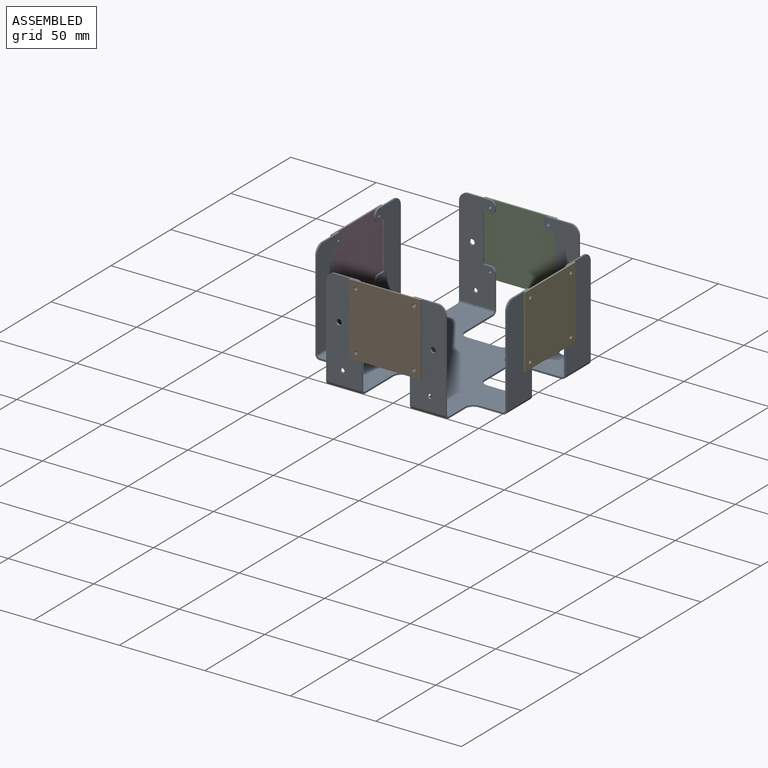
[diagram: assembled view]
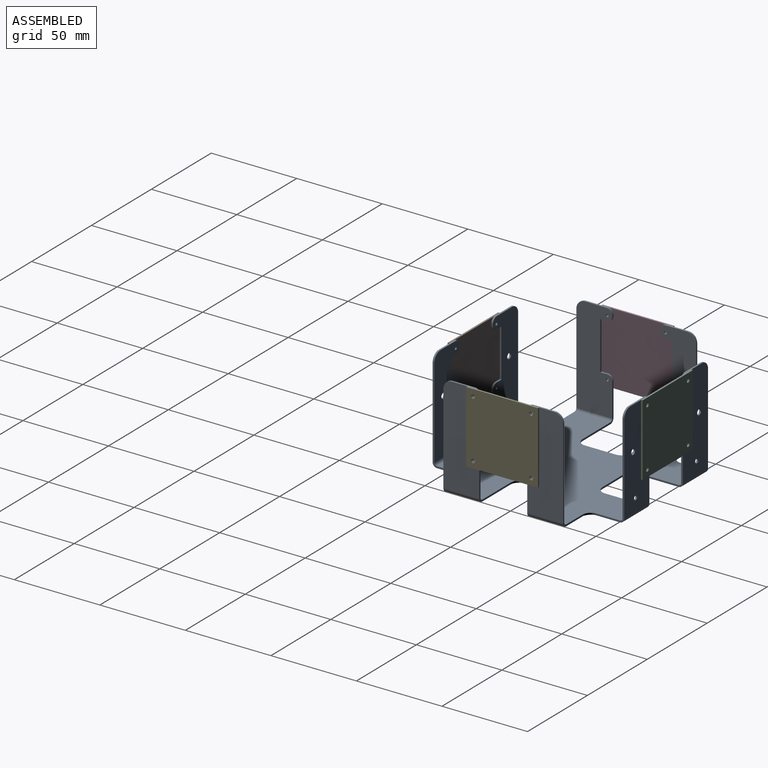
[diagram: assembled view, second angle]
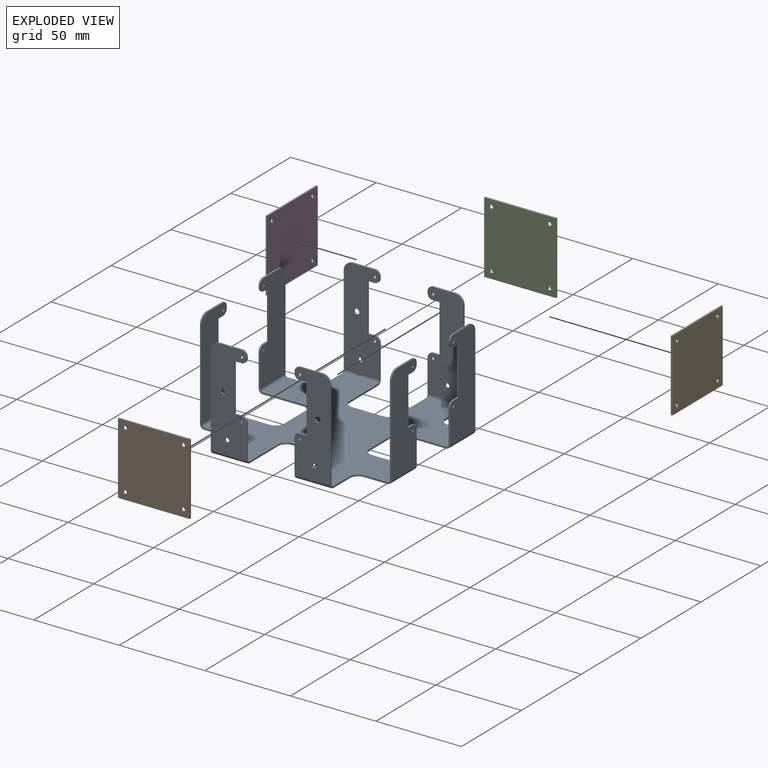
[diagram: exploded view]
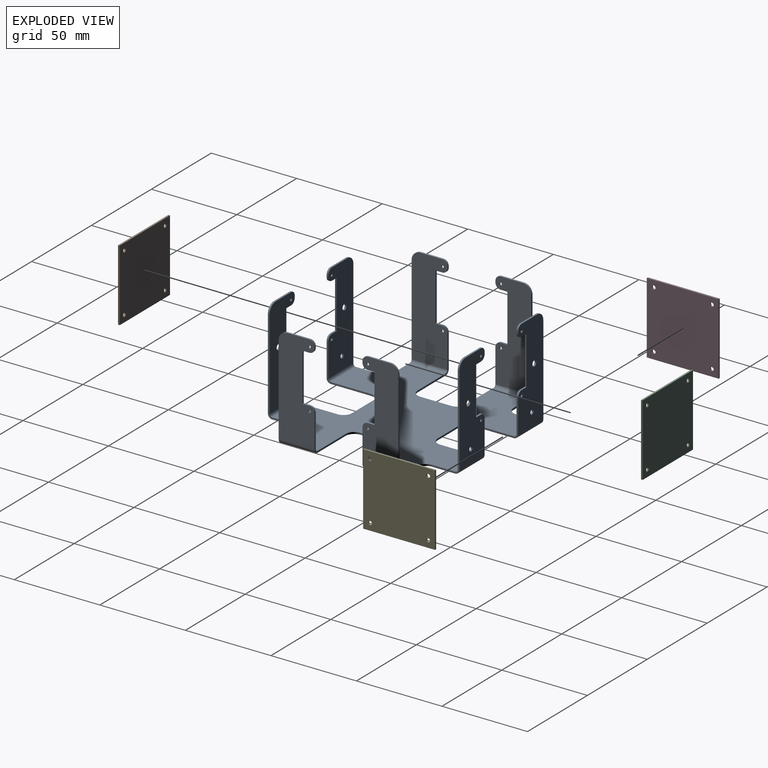
[diagram: exploded view, second angle]
ASSEMBLY  parts=5 mates=4
PART A: 194 faces, bbox 112x112x60 mm
  f0: plane 23.5x1mm, normal (0,1,0), area 23.5mm2, adj f20,f21,f24,f111
  f1: plane 18x1mm, normal (-1,0,0), area 18mm2, adj f20,f21,f24,f28
  f2: plane 23.5x1mm, normal (0,-1,0), area 23.5mm2, adj f20,f21,f28,f91
  f3: plane 13.5x1mm, normal (0,1,0), area 13.5mm2, adj f20,f21,f31,f92
  f4: plane 13.52x1mm, normal (-1,0,0), area 13.5mm2, adj f20,f21,f31,f72
  f5: plane 23.5x1mm, normal (1,0,0), area 23.5mm2, adj f20,f21,f22,f73
  f6: plane 18x1mm, normal (0,1,0), area 18mm2, adj f20,f21,f22,f27
  f7: plane 23.5x1mm, normal (-1,0,0), area 23.5mm2, adj f20,f21,f27,f51
  f8: plane 13.52x1mm, normal (1,0,0), area 13.5mm2, adj f20,f21,f30,f52
  f9: plane 13.5x1mm, normal (0,1,0), area 13.5mm2, adj f20,f21,f30,f171
  f10: plane 23.5x1mm, normal (0,-1,0), area 23.5mm2, adj f20,f21,f26,f172
  f11: plane 18x1mm, normal (1,0,0), area 18mm2, adj f20,f21,f23,f26
  f12: plane 23.5x1mm, normal (0,1,0), area 23.5mm2, adj f20,f21,f23,f190
  f13: plane 13.5x1mm, normal (0,-1,0), area 13.5mm2, adj f20,f21,f33,f191
  f14: plane 13.52x1mm, normal (1,0,0), area 13.5mm2, adj f20,f21,f33,f152
  f15: plane 23.5x1mm, normal (-1,0,0), area 23.5mm2, adj f20,f21,f25,f153
  f16: plane 18x1mm, normal (0,-1,0), area 18mm2, adj f20,f21,f25,f29
  f17: plane 23.5x1mm, normal (1,0,0), area 23.5mm2, adj f20,f21,f29,f131
  f18: plane 13.52x1mm, normal (-1,0,0), area 13.5mm2, adj f20,f21,f32,f132
  f19: plane 13.5x1mm, normal (0,-1,0), area 13.5mm2, adj f20,f21,f32,f110
  f20: plane 107x107mm, normal (0,0,-1), area 6950.9mm2, adj f0,f1,f2,f3,f4,f5,f6,f7
  f21: plane 107x107mm, normal (0,0,1), area 6950.9mm2, adj f0,f1,f2,f3,f4,f5,f6,f7
  f22: cylinder r=5mm len=5mm, axis (0,0,-1), area 7.9mm2, adj f5,f6,f20,f21
  f23: cylinder r=5mm len=5mm, axis (0,0,1), area 7.9mm2, adj f11,f12,f20,f21
  f24: cylinder r=5mm len=5mm, axis (0,0,-1), area 7.9mm2, adj f0,f1,f20,f21
  f25: cylinder r=5mm len=5mm, axis (0,0,-1), area 7.9mm2, adj f15,f16,f20,f21
  f26: cylinder r=5mm len=5mm, axis (0,0,-1), area 7.9mm2, adj f10,f11,f20,f21
  f27: cylinder r=5mm len=5mm, axis (0,0,1), area 7.9mm2, adj f6,f7,f20,f21
  f28: cylinder r=5mm len=5mm, axis (0,0,1), area 7.9mm2, adj f1,f2,f20,f21
  f29: cylinder r=5mm len=5mm, axis (0,0,1), area 7.9mm2, adj f16,f17,f20,f21
  f30: cylinder r=5mm len=5mm, axis (0,0,-1), area 7.9mm2, adj f8,f9,f20,f21
  f31: cylinder r=5mm len=5mm, axis (0,0,-1), area 7.9mm2, adj f3,f4,f20,f21
  f32: cylinder r=5mm len=5mm, axis (0,0,-1), area 7.9mm2, adj f18,f19,f20,f21
  f33: cylinder r=5mm len=5mm, axis (0,0,-1), area 7.9mm2, adj f13,f14,f20,f21
  f34: plane 19.5x1mm, normal (-1,0,0), area 19.5mm2, adj f35,f47,f48,f51
  f35: cylinder r=3mm len=3mm, axis (0,1,0), area 4.7mm2, adj f34,f36,f47,f48
  f36: plane 4x1mm, normal (0,0,1), area 4mm2, adj f35,f37,f47,f48
  f37: plane 28x1mm, normal (-1,0,0), area 28mm2, adj f36,f38,f47,f48
  f38: plane 4x1mm, normal (0,0,-1), area 4mm2, adj f37,f39,f47,f48
  f39: cylinder r=3mm len=3mm, axis (0,1,0), area 4.7mm2, adj f38,f40,f47,f48
  f40: plane 1x1mm, normal (-1,0,0), area 1mm2, adj f39,f47,f48,f50
  f41: plane 13x1mm, normal (0,0,1), area 13mm2, adj f47,f48,f49,f50
  f42: cylinder r=1.6mm len=3.2mm, axis (0,1,0), area 10.1mm2, adj f47,f48
  f43: cylinder r=1.25mm len=2.5mm, axis (0,1,0), area 7.9mm2, adj f47,f48
  f44: cylinder r=0.8mm len=1.6mm, axis (0,1,0), area 5mm2, adj f47,f48
  f45: cylinder r=0.8mm len=1.6mm, axis (0,1,0), area 5mm2, adj f47,f48
  f46: plane 52.5x1mm, normal (1,0,0), area 52.5mm2, adj f47,f48,f49,f52
  f47: plane 57.5x21mm, normal (0,1,0), area 983.4mm2, adj f34,f35,f36,f37,f38,f39,f40,f41
  f48: plane 57.5x21mm, normal (0,-1,0), area 983.4mm2, adj f34,f35,f36,f37,f38,f39,f40,f41
  f49: cylinder r=5mm len=5mm, axis (0,-1,0), area 7.9mm2, adj f41,f46,f47,f48
  f50: cylinder r=3mm len=3mm, axis (0,1,0), area 4.7mm2, adj f40,f41,f47,f48
  f51: plane 2.5x2.5mm, normal (-1,0,0), area 3.1mm2, adj f7,f34,f53,f54
  f52: plane 2.5x2.5mm, normal (1,0,0), area 3.1mm2, adj f8,f46,f53,f54
  f53: cylinder r=2.5mm len=21mm, axis (-1,0,0), area 82.5mm2, adj f20,f47,f51,f52
  f54: cylinder r=1.5mm len=21mm, axis (-1,0,0), area 49.5mm2, adj f21,f48,f51,f52
  f55: plane 1x1mm, normal (1,0,0), area 1mm2, adj f56,f68,f69,f70
  f56: cylinder r=3mm len=3mm, axis (0,1,0), area 4.7mm2, adj f55,f57,f68,f69
  f57: plane 4x1mm, normal (0,0,-1), area 4mm2, adj f56,f58,f68,f69
  f58: plane 28x1mm, normal (1,0,0), area 28mm2, adj f57,f59,f68,f69
  f59: plane 4x1mm, normal (0,0,1), area 4mm2, adj f58,f60,f68,f69
  f60: cylinder r=3mm len=3mm, axis (0,1,0), area 4.7mm2, adj f59,f61,f68,f69
  f61: plane 19.5x1mm, normal (1,0,0), area 19.5mm2, adj f60,f68,f69,f73
  f62: plane 52.5x1mm, normal (-1,0,0), area 52.5mm2, adj f68,f69,f71,f72
  f63: plane 13x1mm, normal (0,0,1), area 13mm2, adj f68,f69,f70,f71
  f64: cylinder r=1.6mm len=3.2mm, axis (0,1,0), area 10.1mm2, adj f68,f69
  f65: cylinder r=0.8mm len=1.6mm, axis (0,1,0), area 5mm2, adj f68,f69
  f66: cylinder r=0.8mm len=1.6mm, axis (0,1,0), area 5mm2, adj f68,f69
  f67: cylinder r=1.25mm len=2.5mm, axis (0,1,0), area 7.9mm2, adj f68,f69
  f68: plane 57.5x21mm, normal (0,1,0), area 983.4mm2, adj f55,f56,f57,f58,f59,f60,f61,f62
  f69: plane 57.5x21mm, normal (0,-1,0), area 983.4mm2, adj f55,f56,f57,f58,f59,f60,f61,f62
  f70: cylinder r=3mm len=3mm, axis (0,-1,0), area 4.7mm2, adj f55,f63,f68,f69
  f71: cylinder r=5mm len=5mm, axis (0,1,0), area 7.9mm2, adj f62,f63,f68,f69
  f72: plane 2.5x2.5mm, normal (-1,0,0), area 3.1mm2, adj f4,f62,f74,f75
  f73: plane 2.5x2.5mm, normal (1,0,0), area 3.1mm2, adj f5,f61,f74,f75
  f74: cylinder r=2.5mm len=21mm, axis (-1,0,0), area 82.5mm2, adj f20,f68,f72,f73
  f75: cylinder r=1.5mm len=21mm, axis (-1,0,0), area 49.5mm2, adj f21,f69,f72,f73
  f76: plane 19.5x1mm, normal (0,-1,0), area 19.5mm2, adj f77,f87,f88,f91
  f77: cylinder r=3mm len=3mm, axis (-1,0,0), area 4.7mm2, adj f76,f78,f87,f88
  f78: plane 4x1mm, normal (0,0,1), area 4mm2, adj f77,f79,f87,f88
  f79: plane 28x1mm, normal (0,-1,0), area 28mm2, adj f78,f80,f87,f88
  f80: plane 4x1mm, normal (0,0,-1), area 4mm2, adj f79,f81,f87,f88
  f81: cylinder r=3mm len=3mm, axis (-1,0,0), area 4.7mm2, adj f80,f82,f87,f88
  f82: plane 1x1mm, normal (0,-1,0), area 1mm2, adj f81,f87,f88,f90
  f83: plane 12.98x1mm, normal (0,0,1), area 13mm2, adj f87,f88,f89,f90
  f84: cylinder r=0.8mm len=1.6mm, axis (-1,0,0), area 5mm2, adj f87,f88
  f85: cylinder r=0.8mm len=1.6mm, axis (-1,0,0), area 5mm2, adj f87,f88
  f86: plane 52.5x1mm, normal (0,1,0), area 52.5mm2, adj f87,f88,f89,f92
  f87: plane 57.5x20.98mm, normal (-1,0,0), area 995.2mm2, adj f76,f77,f78,f79,f80,f81,f82,f83
  f88: plane 57.5x20.98mm, normal (1,0,0), area 995.2mm2, adj f76,f77,f78,f79,f80,f81,f82,f83
  f89: cylinder r=5mm len=5mm, axis (1,0,0), area 7.9mm2, adj f83,f86,f87,f88
  f90: cylinder r=3mm len=3mm, axis (-1,0,0), area 4.7mm2, adj f82,f83,f87,f88
  f91: plane 2.5x2.5mm, normal (0,-1,0), area 3.1mm2, adj f2,f76,f93,f94
  f92: plane 2.5x2.5mm, normal (0,1,0), area 3.1mm2, adj f3,f86,f93,f94
  f93: cylinder r=2.5mm len=20.98mm, axis (0,-1,0), area 82.4mm2, adj f20,f87,f91,f92
  f94: cylinder r=1.5mm len=20.98mm, axis (0,-1,0), area 49.4mm2, adj f21,f88,f91,f92
  f95: plane 1x1mm, normal (0,1,0), area 1mm2, adj f96,f106,f107,f108
  f96: cylinder r=3mm len=3mm, axis (-1,0,0), area 4.7mm2, adj f95,f97,f106,f107
  f97: plane 4x1mm, normal (0,0,-1), area 4mm2, adj f96,f98,f106,f107
  f98: plane 28x1mm, normal (0,1,0), area 28mm2, adj f97,f99,f106,f107
  f99: plane 4x1mm, normal (0,0,1), area 4mm2, adj f98,f100,f106,f107
  f100: cylinder r=3mm len=3mm, axis (-1,0,0), area 4.7mm2, adj f99,f101,f106,f107
  f101: plane 19.5x1mm, normal (0,1,0), area 19.5mm2, adj f100,f106,f107,f111
  f102: plane 52.5x1mm, normal (0,-1,0), area 52.5mm2, adj f106,f107,f109,f110
  f103: plane 12.98x1mm, normal (0,0,1), area 13mm2, adj f106,f107,f108,f109
  f104: cylinder r=0.8mm len=1.6mm, axis (-1,0,0), area 5mm2, adj f106,f107
  f105: cylinder r=0.8mm len=1.6mm, axis (-1,0,0), area 5mm2, adj f106,f107
  f106: plane 57.5x20.98mm, normal (-1,0,0), area 995.2mm2, adj f95,f96,f97,f98,f99,f100,f101,f102
  f107: plane 57.5x20.98mm, normal (1,0,0), area 995.2mm2, adj f95,f96,f97,f98,f99,f100,f101,f102
  f108: cylinder r=3mm len=3mm, axis (1,0,0), area 4.7mm2, adj f95,f103,f106,f107
  f109: cylinder r=5mm len=5mm, axis (-1,0,0), area 7.9mm2, adj f102,f103,f106,f107
  f110: plane 2.5x2.5mm, normal (0,-1,0), area 3.1mm2, adj f19,f102,f112,f113
  f111: plane 2.5x2.5mm, normal (0,1,0), area 3.1mm2, adj f0,f101,f112,f113
  f112: cylinder r=2.5mm len=20.98mm, axis (0,-1,0), area 82.4mm2, adj f20,f106,f110,f111
  f113: cylinder r=1.5mm len=20.98mm, axis (0,-1,0), area 49.4mm2, adj f21,f107,f110,f111
  f114: plane 19.5x1mm, normal (1,0,0), area 19.5mm2, adj f115,f127,f128,f131
  f115: cylinder r=3mm len=3mm, axis (0,-1,0), area 4.7mm2, adj f114,f116,f127,f128
  f116: plane 4x1mm, normal (0,0,1), area 4mm2, adj f115,f117,f127,f128
  f117: plane 28x1mm, normal (1,0,0), area 28mm2, adj f116,f118,f127,f128
  f118: plane 4x1mm, normal (0,0,-1), area 4mm2, adj f117,f119,f127,f128
  f119: cylinder r=3mm len=3mm, axis (0,-1,0), area 4.7mm2, adj f118,f120,f127,f128
  f120: plane 1x1mm, normal (1,0,0), area 1mm2, adj f119,f127,f128,f129
  f121: plane 13x1mm, normal (0,0,1), area 13mm2, adj f127,f128,f129,f130
  f122: cylinder r=1.6mm len=3.2mm, axis (0,-1,0), area 10.1mm2, adj f127,f128
  f123: cylinder r=0.8mm len=1.6mm, axis (0,-1,0), area 5mm2, adj f127,f128
  f124: cylinder r=0.8mm len=1.6mm, axis (0,-1,0), area 5mm2, adj f127,f128
  f125: cylinder r=1.25mm len=2.5mm, axis (0,-1,0), area 7.9mm2, adj f127,f128
  f126: plane 52.5x1mm, normal (-1,0,0), area 52.5mm2, adj f127,f128,f130,f132
  f127: plane 57.5x21mm, normal (0,-1,0), area 983.4mm2, adj f114,f115,f116,f117,f118,f119,f120,f121
  f128: plane 57.5x21mm, normal (0,1,0), area 983.4mm2, adj f114,f115,f116,f117,f118,f119,f120,f121
  f129: cylinder r=3mm len=3mm, axis (0,1,0), area 4.7mm2, adj f120,f121,f127,f128
  f130: cylinder r=5mm len=5mm, axis (0,1,0), area 7.9mm2, adj f121,f126,f127,f128
  f131: plane 2.5x2.5mm, normal (1,0,0), area 3.1mm2, adj f17,f114,f133,f134
  f132: plane 2.5x2.5mm, normal (-1,0,0), area 3.1mm2, adj f18,f126,f133,f134
  f133: cylinder r=2.5mm len=21mm, axis (1,0,0), area 82.5mm2, adj f20,f127,f131,f132
  f134: cylinder r=1.5mm len=21mm, axis (1,0,0), area 49.5mm2, adj f21,f128,f131,f132
  f135: plane 1x1mm, normal (-1,0,0), area 1mm2, adj f136,f148,f149,f150
  f136: cylinder r=3mm len=3mm, axis (0,-1,0), area 4.7mm2, adj f135,f137,f148,f149
  f137: plane 4x1mm, normal (0,0,-1), area 4mm2, adj f136,f138,f148,f149
  f138: plane 28x1mm, normal (-1,0,0), area 28mm2, adj f137,f139,f148,f149
  f139: plane 4x1mm, normal (0,0,1), area 4mm2, adj f138,f140,f148,f149
  f140: cylinder r=3mm len=3mm, axis (0,-1,0), area 4.7mm2, adj f139,f141,f148,f149
  f141: plane 19.5x1mm, normal (-1,0,0), area 19.5mm2, adj f140,f148,f149,f153
  f142: plane 52.5x1mm, normal (1,0,0), area 52.5mm2, adj f148,f149,f151,f152
  f143: plane 13x1mm, normal (0,0,1), area 13mm2, adj f148,f149,f150,f151
  f144: cylinder r=1.6mm len=3.2mm, axis (0,-1,0), area 10.1mm2, adj f148,f149
  f145: cylinder r=1.25mm len=2.5mm, axis (0,-1,0), area 7.9mm2, adj f148,f149
  f146: cylinder r=0.8mm len=1.6mm, axis (0,-1,0), area 5mm2, adj f148,f149
  f147: cylinder r=0.8mm len=1.6mm, axis (0,-1,0), area 5mm2, adj f148,f149
  f148: plane 57.5x21mm, normal (0,-1,0), area 983.4mm2, adj f135,f136,f137,f138,f139,f140,f141,f142
  f149: plane 57.5x21mm, normal (0,1,0), area 983.4mm2, adj f135,f136,f137,f138,f139,f140,f141,f142
  f150: cylinder r=3mm len=3mm, axis (0,-1,0), area 4.7mm2, adj f135,f143,f148,f149
  f151: cylinder r=5mm len=5mm, axis (0,-1,0), area 7.9mm2, adj f142,f143,f148,f149
  f152: plane 2.5x2.5mm, normal (1,0,0), area 3.1mm2, adj f14,f142,f154,f155
  f153: plane 2.5x2.5mm, normal (-1,0,0), area 3.1mm2, adj f15,f141,f154,f155
  f154: cylinder r=2.5mm len=21mm, axis (1,0,0), area 82.5mm2, adj f20,f148,f152,f153
  f155: cylinder r=1.5mm len=21mm, axis (1,0,0), area 49.5mm2, adj f21,f149,f152,f153
  f156: plane 1x1mm, normal (0,-1,0), area 1mm2, adj f157,f167,f168,f170
  f157: cylinder r=3mm len=3mm, axis (1,0,0), area 4.7mm2, adj f156,f158,f167,f168
  f158: plane 4x1mm, normal (0,0,-1), area 4mm2, adj f157,f159,f167,f168
  f159: plane 28x1mm, normal (0,-1,0), area 28mm2, adj f158,f160,f167,f168
  f160: plane 4x1mm, normal (0,0,1), area 4mm2, adj f159,f161,f167,f168
  f161: cylinder r=3mm len=3mm, axis (1,0,0), area 4.7mm2, adj f160,f162,f167,f168
  f162: plane 19.5x1mm, normal (0,-1,0), area 19.5mm2, adj f161,f167,f168,f172
  f163: plane 52.5x1mm, normal (0,1,0), area 52.5mm2, adj f167,f168,f169,f171
  f164: plane 12.98x1mm, normal (0,0,1), area 13mm2, adj f167,f168,f169,f170
  f165: cylinder r=0.8mm len=1.6mm, axis (1,0,0), area 5mm2, adj f167,f168
  f166: cylinder r=0.8mm len=1.6mm, axis (1,0,0), area 5mm2, adj f167,f168
  f167: plane 57.5x20.98mm, normal (1,0,0), area 995.2mm2, adj f156,f157,f158,f159,f160,f161,f162,f163
  f168: plane 57.5x20.98mm, normal (-1,0,0), area 995.2mm2, adj f156,f157,f158,f159,f160,f161,f162,f163
  f169: cylinder r=5mm len=5mm, axis (1,0,0), area 7.9mm2, adj f163,f164,f167,f168
  f170: cylinder r=3mm len=3mm, axis (1,0,0), area 4.7mm2, adj f156,f164,f167,f168
  f171: plane 2.5x2.5mm, normal (0,1,0), area 3.1mm2, adj f9,f163,f173,f174
  f172: plane 2.5x2.5mm, normal (0,-1,0), area 3.1mm2, adj f10,f162,f173,f174
  f173: cylinder r=2.5mm len=20.98mm, axis (0,1,0), area 82.4mm2, adj f20,f167,f171,f172
  f174: cylinder r=1.5mm len=20.98mm, axis (0,1,0), area 49.4mm2, adj f21,f168,f171,f172
  f175: plane 19.5x1mm, normal (0,1,0), area 19.5mm2, adj f176,f186,f187,f190
  f176: cylinder r=3mm len=3mm, axis (1,0,0), area 4.7mm2, adj f175,f177,f186,f187
  f177: plane 4x1mm, normal (0,0,1), area 4mm2, adj f176,f178,f186,f187
  f178: plane 28x1mm, normal (0,1,0), area 28mm2, adj f177,f179,f186,f187
  f179: plane 4x1mm, normal (0,0,-1), area 4mm2, adj f178,f180,f186,f187
  f180: cylinder r=3mm len=3mm, axis (1,0,0), area 4.7mm2, adj f179,f181,f186,f187
  f181: plane 1x1mm, normal (0,1,0), area 1mm2, adj f180,f186,f187,f188
  f182: plane 12.98x1mm, normal (0,0,1), area 13mm2, adj f186,f187,f188,f189
  f183: cylinder r=0.8mm len=1.6mm, axis (1,0,0), area 5mm2, adj f186,f187
  f184: cylinder r=0.8mm len=1.6mm, axis (1,0,0), area 5mm2, adj f186,f187
  f185: plane 52.5x1mm, normal (0,-1,0), area 52.5mm2, adj f186,f187,f189,f191
  f186: plane 57.5x20.98mm, normal (1,0,0), area 995.2mm2, adj f175,f176,f177,f178,f179,f180,f181,f182
  f187: plane 57.5x20.98mm, normal (-1,0,0), area 995.2mm2, adj f175,f176,f177,f178,f179,f180,f181,f182
  f188: cylinder r=3mm len=3mm, axis (-1,0,0), area 4.7mm2, adj f181,f182,f186,f187
  f189: cylinder r=5mm len=5mm, axis (-1,0,0), area 7.9mm2, adj f182,f185,f186,f187
  f190: plane 2.5x2.5mm, normal (0,1,0), area 3.1mm2, adj f12,f175,f192,f193
  f191: plane 2.5x2.5mm, normal (0,-1,0), area 3.1mm2, adj f13,f185,f192,f193
  f192: cylinder r=2.5mm len=20.98mm, axis (0,1,0), area 82.4mm2, adj f20,f186,f190,f191
  f193: cylinder r=1.5mm len=20.98mm, axis (0,1,0), area 49.4mm2, adj f21,f187,f190,f191
PART B: 10 faces, bbox 42x42x1 mm
  f0: plane 42x1mm, normal (0,-1,0), area 42mm2, adj f1,f3,f4,f5
  f1: plane 42x1mm, normal (1,0,0), area 42mm2, adj f0,f2,f4,f5
  f2: plane 42x1mm, normal (0,1,0), area 42mm2, adj f1,f3,f4,f5
  f3: plane 42x1mm, normal (-1,0,0), area 42mm2, adj f0,f2,f4,f5
  f4: plane 42x42mm, normal (0,0,1), area 1748.8mm2, adj f0,f1,f2,f3,f6,f7,f8,f9
  f5: plane 42x42mm, normal (0,0,-1), area 1748.8mm2, adj f0,f1,f2,f3,f6,f7,f8,f9
  f6: cylinder r=1.1mm len=2.2mm, axis (0,0,-1), area 6.9mm2, adj f4,f5
  f7: cylinder r=1.1mm len=2.2mm, axis (0,0,-1), area 6.9mm2, adj f4,f5
  f8: cylinder r=1.1mm len=2.2mm, axis (0,0,-1), area 6.9mm2, adj f4,f5
  f9: cylinder r=1.1mm len=2.2mm, axis (0,0,-1), area 6.9mm2, adj f4,f5
PART C: same geometry as B
PART D: same geometry as B
PART E: same geometry as B
PLACE A at identity fixed
PLACE B rot(axis=(0.58,0.58,-0.58),120deg) t=(0,-56,39)mm
PLACE C rot(axis=(-0.58,0.58,0.58),120deg) t=(0,56,39)mm
PLACE D rot(axis=(0.71,0,-0.71),180deg) t=(-56,0,39)mm
PLACE E rot(axis=(0,1,0),90deg) t=(56,0,39)mm
MATE fastened E.f9 <-> A.f180  axis (-1,0,0) through (56,-17,56)mm
MATE fastened C.f9 <-> A.f136  axis (0,-1,0) through (17,56,56)mm
MATE fastened D.f9 <-> A.f81  axis (1,0,0) through (-56,17,56)mm
MATE fastened B.f9 <-> A.f119  axis (0,1,0) through (-17,-56,56)mm
